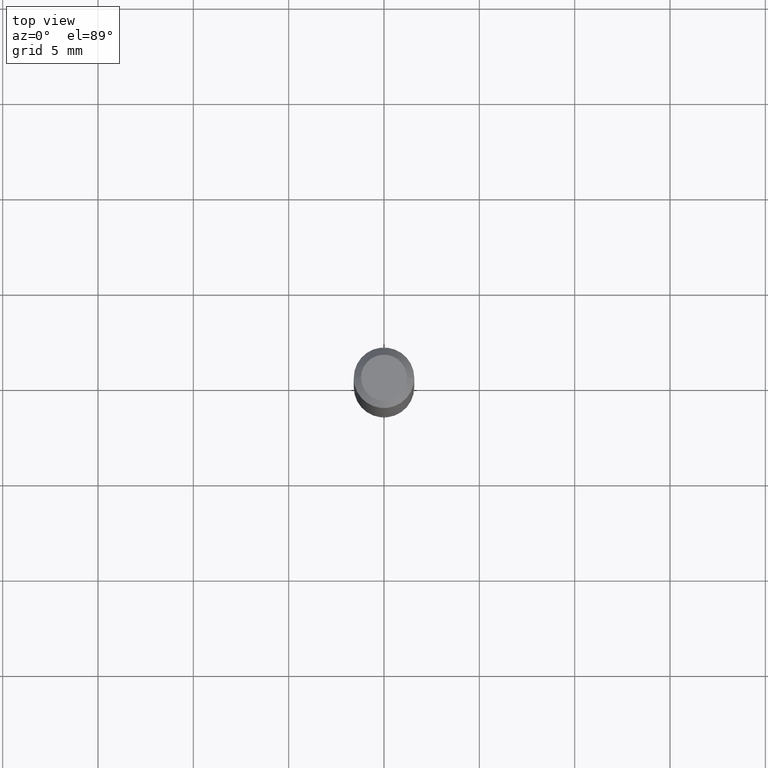
[diagram: clean part render]
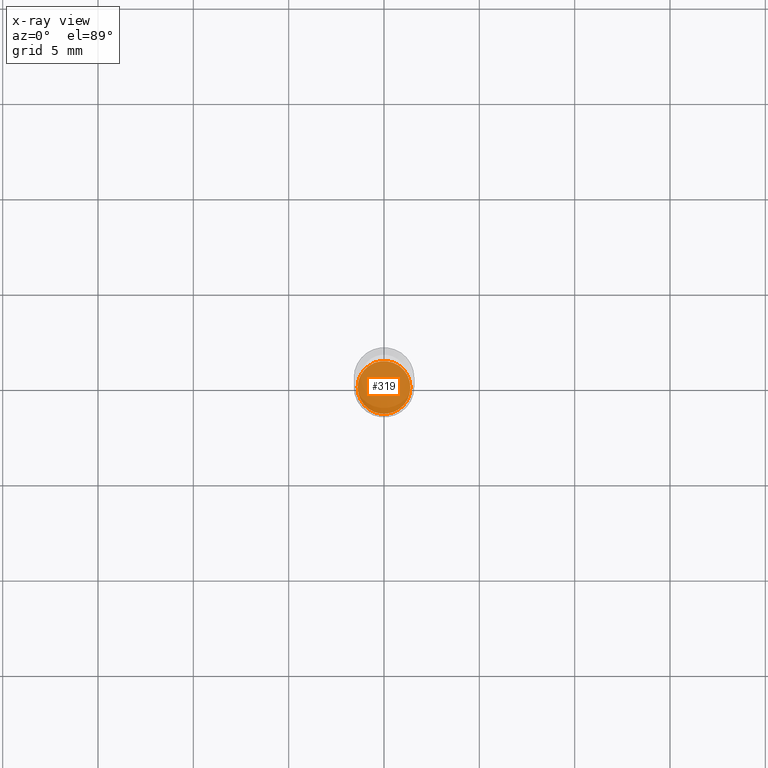
[diagram: x-ray — body ghosted, one internal face saturated and labeled with its STEP entity id]
A machine part, top view, then the same camera in x-ray: the body is ghosted and one INTERNAL B-rep face — a face not visible from any outside direction — is saturated and labeled: STEP entity #319.
In plain terms, the highlighted planar face has unit normal (-0, 0, 1).
Its self-contained STEP definition (entity closure, byte-faithful):
#6 = CARTESIAN_POINT ( 'NONE',  ( -0.05449999999999997208, -3.695138148283114316E-15, -1.170000000000000151 ) ) ;
#27 = AXIS2_PLACEMENT_3D ( 'NONE', #515, #198, #281 ) ;
#61 = ORIENTED_EDGE ( 'NONE', *, *, #306, .F. ) ;
#77 = FACE_OUTER_BOUND ( 'NONE', #478, .T. ) ;
#81 = AXIS2_PLACEMENT_3D ( 'NONE', #431, #385, #241 ) ;
#93 = VERTEX_POINT ( 'NONE', #6 ) ;
#105 = EDGE_CURVE ( 'NONE', #93, #417, #427, .T. ) ;
#175 = CARTESIAN_POINT ( 'NONE',  ( 2.861198503236610065E-29, -4.085033166446480067E-15, -1.170000000000000151 ) ) ;
#198 = DIRECTION ( 'NONE',  ( -2.445468806185136597E-29, 3.491481338843145583E-15, 1.000000000000000000 ) ) ;
#206 = CARTESIAN_POINT ( 'NONE',  ( 0.05449999999999997208, -4.465604632380382045E-15, -1.170000000000000151 ) ) ;
#210 = AXIS2_PLACEMENT_3D ( 'NONE', #175, #367, #326 ) ;
#241 = DIRECTION ( 'NONE',  ( 1.000000000000000000, -6.982962677686265922E-15, 4.876176775795935793E-29 ) ) ;
#281 = DIRECTION ( 'NONE',  ( 1.000000000000000000, -6.982962677686273810E-15, 0.000000000000000000 ) ) ;
#284 = ORIENTED_EDGE ( 'NONE', *, *, #105, .F. ) ;
#306 = EDGE_CURVE ( 'NONE', #417, #93, #401, .T. ) ;
#319 = ADVANCED_FACE ( 'NONE', ( #77 ), #353, .F. ) ;
#326 = DIRECTION ( 'NONE',  ( 1.000000000000000000, -6.982962677686273810E-15, 0.000000000000000000 ) ) ;
#353 = PLANE ( 'NONE',  #81 ) ;
#367 = DIRECTION ( 'NONE',  ( -2.445468806185136597E-29, 3.491481338843145583E-15, 1.000000000000000000 ) ) ;
#385 = DIRECTION ( 'NONE',  ( -2.438088387897960049E-29, 3.491481338843145188E-15, 1.000000000000000000 ) ) ;
#401 = CIRCLE ( 'NONE', #27, 0.05449999999999997208 ) ;
#417 = VERTEX_POINT ( 'NONE', #206 ) ;
#427 = CIRCLE ( 'NONE', #210, 0.05449999999999997208 ) ;
#431 = CARTESIAN_POINT ( 'NONE',  ( 2.861198503236610065E-29, -4.085033166446480067E-15, -1.170000000000000151 ) ) ;
#478 = EDGE_LOOP ( 'NONE', ( #61, #284 ) ) ;
#515 = CARTESIAN_POINT ( 'NONE',  ( 2.861198503236610065E-29, -4.085033166446480067E-15, -1.170000000000000151 ) ) ;